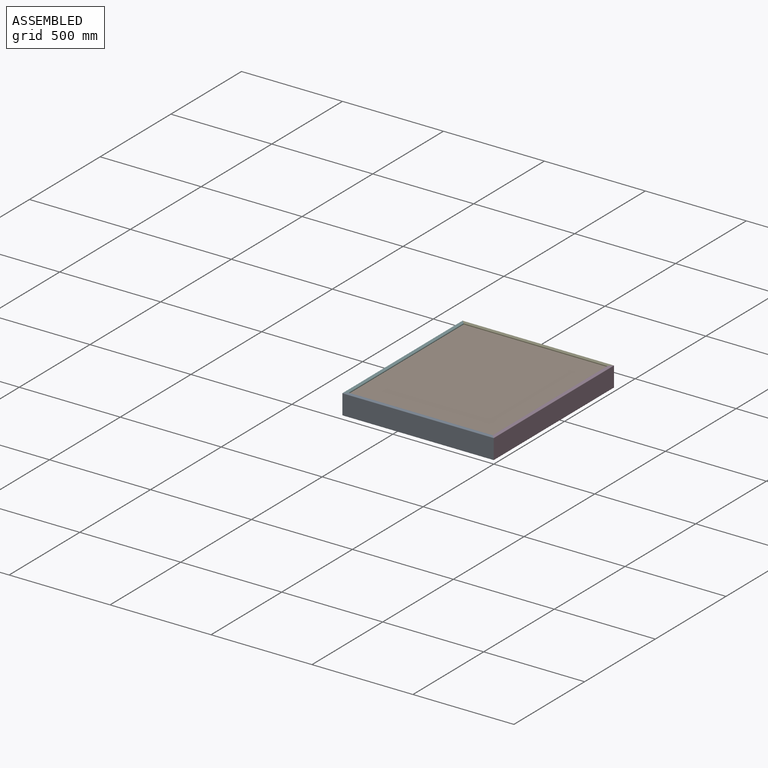
[diagram: assembled view]
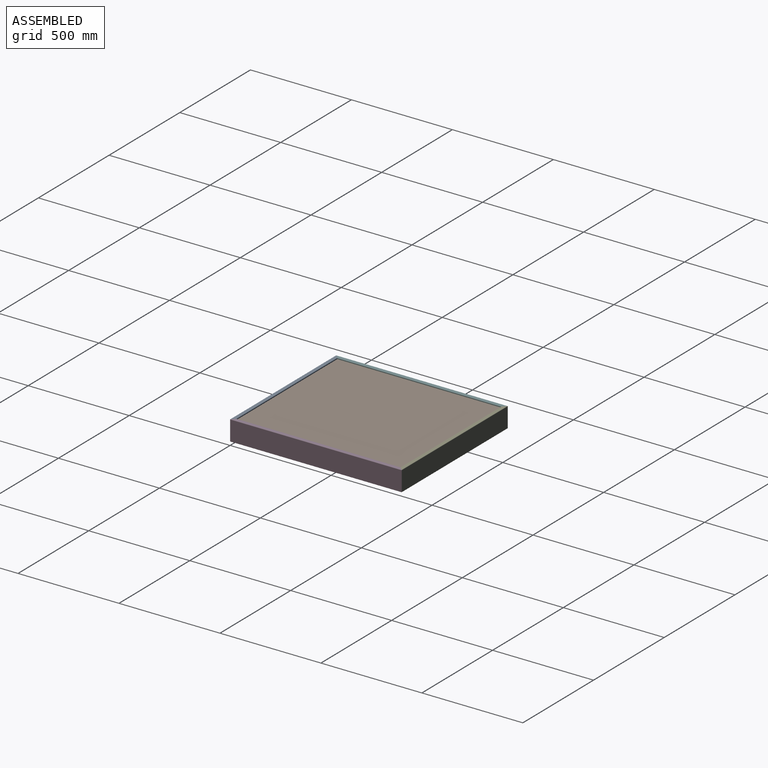
[diagram: assembled view, second angle]
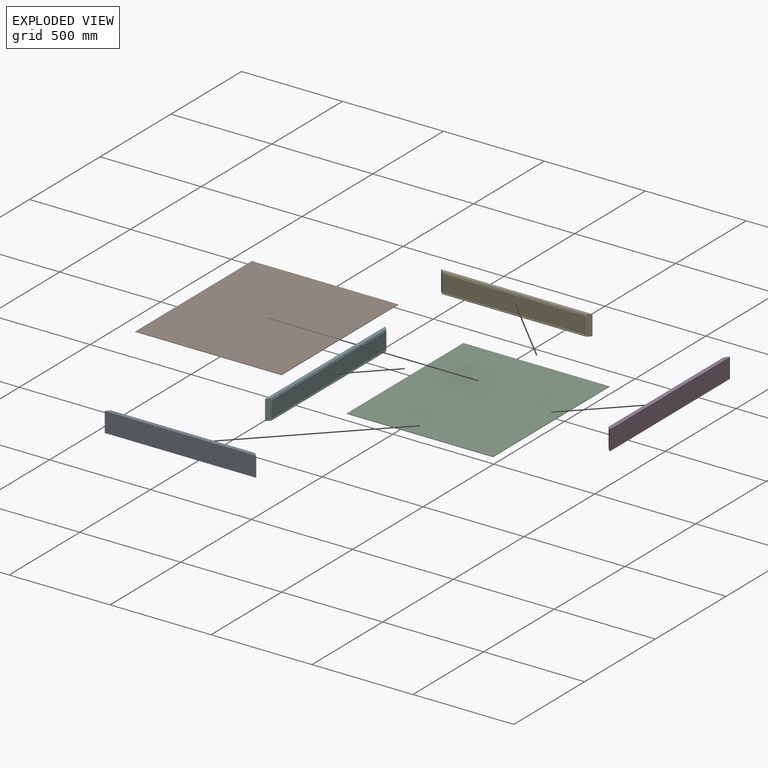
[diagram: exploded view]
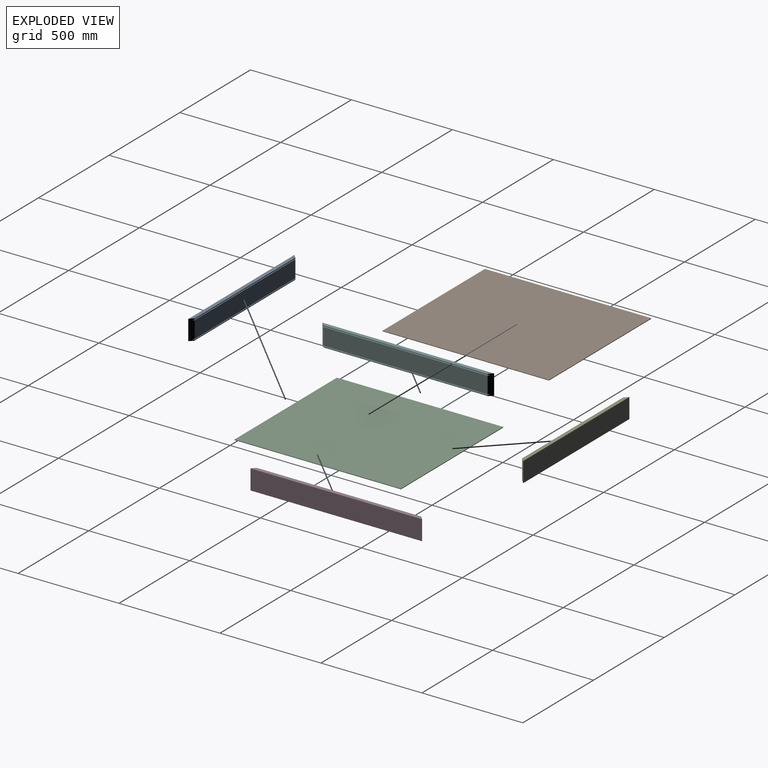
[diagram: exploded view, second angle]
ASSEMBLY  parts=6 mates=6
PART A: 18 faces, bbox 19x750x100 mm
  f0: plane 712x84mm, normal (-1,0,0), area 59808mm2, adj f2,f3,f12,f17
  f1: plane 712x3.5mm, normal (-1,0,0), area 2492mm2, adj f2,f3,f8,f14
  f2: plane 100x19mm, normal (-0.71,-0.71,0), area 2633.4mm2, adj f0,f1,f4,f5,f6,f7,f8,f9
  f3: plane 100x19mm, normal (-0.71,0.71,0), area 2633.4mm2, adj f0,f1,f4,f5,f6,f7,f8,f9
  f4: plane 747x16mm, normal (0,0,1), area 11696mm2, adj f2,f3,f7,f8
  f5: plane 712x3.5mm, normal (-1,0,0), area 2492mm2, adj f2,f3,f9,f15
  f6: plane 747x16mm, normal (0,0,-1), area 11696mm2, adj f2,f3,f9,f10
  f7: cylinder r=1.5mm len=750mm, axis (0,1,0), area 1764.6mm2, adj f2,f3,f4,f11
  f8: cylinder r=1.5mm len=715mm, axis (0,1,0), area 1680.2mm2, adj f1,f2,f3,f4
  f9: cylinder r=1.5mm len=715mm, axis (0,1,0), area 1680.2mm2, adj f2,f3,f5,f6
  f10: cylinder r=1.5mm len=750mm, axis (0,1,0), area 1764.6mm2, adj f2,f3,f6,f11
  f11: plane 750x97mm, normal (1,0,0), area 72750mm2, adj f2,f3,f7,f10
  f12: plane 724x6mm, normal (0,0,1), area 4308mm2, adj f0,f2,f3,f13
  f13: plane 724x3mm, normal (-1,0,0), area 2172mm2, adj f2,f3,f12,f14
  f14: plane 724x6mm, normal (0,0,-1), area 4308mm2, adj f1,f2,f3,f13
  f15: plane 724x6mm, normal (0,0,1), area 4308mm2, adj f2,f3,f5,f16
  f16: plane 724x3mm, normal (-1,0,0), area 2172mm2, adj f2,f3,f15,f17
  f17: plane 724x6mm, normal (0,0,-1), area 4308mm2, adj f0,f2,f3,f16
PART B: 6 faces, bbox 824x724x3 mm
  f0: plane 824x3mm, normal (0,1,0), area 2472mm2, adj f1,f3,f4,f5
  f1: plane 724x3mm, normal (-1,0,0), area 2172mm2, adj f0,f2,f4,f5
  f2: plane 824x3mm, normal (0,-1,0), area 2472mm2, adj f1,f3,f4,f5
  f3: plane 724x3mm, normal (1,0,0), area 2172mm2, adj f0,f2,f4,f5
  f4: plane 824x724mm, normal (0,0,1), area 596576mm2, adj f0,f1,f2,f3
  f5: plane 824x724mm, normal (0,0,-1), area 596576mm2, adj f0,f1,f2,f3
PART C: same geometry as B
PART D: 18 faces, bbox 19x850x100 mm
  f0: plane 812x3.5mm, normal (-1,0,0), area 2842mm2, adj f2,f3,f8,f16
  f1: plane 812x84mm, normal (-1,0,0), area 68208mm2, adj f2,f3,f13,f15
  f2: plane 100x19mm, normal (-0.71,-0.71,0), area 2633.4mm2, adj f0,f1,f4,f5,f6,f7,f8,f9
  f3: plane 100x19mm, normal (-0.71,0.71,0), area 2633.4mm2, adj f0,f1,f4,f5,f6,f7,f8,f9
  f4: plane 847x16mm, normal (0,0,1), area 13296mm2, adj f2,f3,f7,f10
  f5: plane 812x3.5mm, normal (-1,0,0), area 2842mm2, adj f2,f3,f7,f12
  f6: plane 847x16mm, normal (0,0,-1), area 13296mm2, adj f2,f3,f8,f9
  f7: cylinder r=1.5mm len=815mm, axis (0,1,0), area 1915.8mm2, adj f2,f3,f4,f5
  f8: cylinder r=1.5mm len=815mm, axis (0,1,0), area 1915.8mm2, adj f0,f2,f3,f6
  f9: cylinder r=1.5mm len=850mm, axis (0,1,0), area 2000.2mm2, adj f2,f3,f6,f11
  f10: cylinder r=1.5mm len=850mm, axis (0,1,0), area 2000.2mm2, adj f2,f3,f4,f11
  f11: plane 850x97mm, normal (1,0,0), area 82450mm2, adj f2,f3,f9,f10
  f12: plane 824x6mm, normal (0,0,-1), area 4908mm2, adj f2,f3,f5,f14
  f13: plane 824x6mm, normal (0,0,1), area 4908mm2, adj f1,f2,f3,f14
  f14: plane 824x3mm, normal (-1,0,0), area 2472mm2, adj f2,f3,f12,f13
  f15: plane 824x6mm, normal (0,0,-1), area 4908mm2, adj f1,f2,f3,f17
  f16: plane 824x6mm, normal (0,0,1), area 4908mm2, adj f0,f2,f3,f17
  f17: plane 824x3mm, normal (-1,0,0), area 2472mm2, adj f2,f3,f15,f16
PART E: same geometry as A
PART F: same geometry as D
PLACE A rot(axis=(0,0,-1),90deg) t=(-375,9.5,48.5)mm
PLACE B rot(axis=(0,0,-1),90deg) t=(-375,425,90.5)mm
PLACE C rot(axis=(0,0,1),90deg) t=(-375,425,3.5)mm
PLACE D t=(-9.5,425,48.5)mm
PLACE E rot(axis=(0,0,1),90deg) t=(-375,840.5,48.5)mm
PLACE F rot(axis=(0,1,0),180deg) t=(-740.5,425,48.5)mm
MATE fastened E.f2 <-> D.f3  axis (0.71,-0.71,0) through (-9.37,840.63,48.5)mm
MATE slider B.f0 <-> D.f14  axis (1,0,0) through (-13,425,92)mm
MATE fastened E.f3 <-> F.f3  axis (-0.71,-0.71,0) through (-740.63,840.63,48.5)mm
MATE fastened A.f3 <-> D.f2  axis (0.71,0.71,0) through (-9.37,9.37,48.5)mm
MATE planar A.f4 <-> D.f4  axis (0,0,1) through (-375,9.44,98.5)mm
MATE slider C.f2 <-> D.f17  axis (1,0,0) through (-13,425,5)mm
